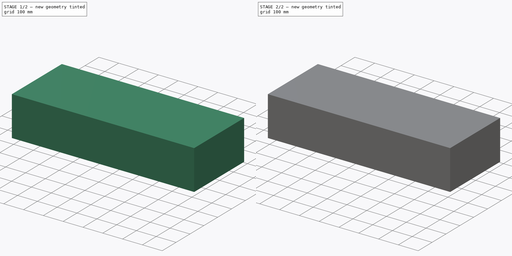
[diagram: build sequence overview — one tinted view per stage of 2, left to right]
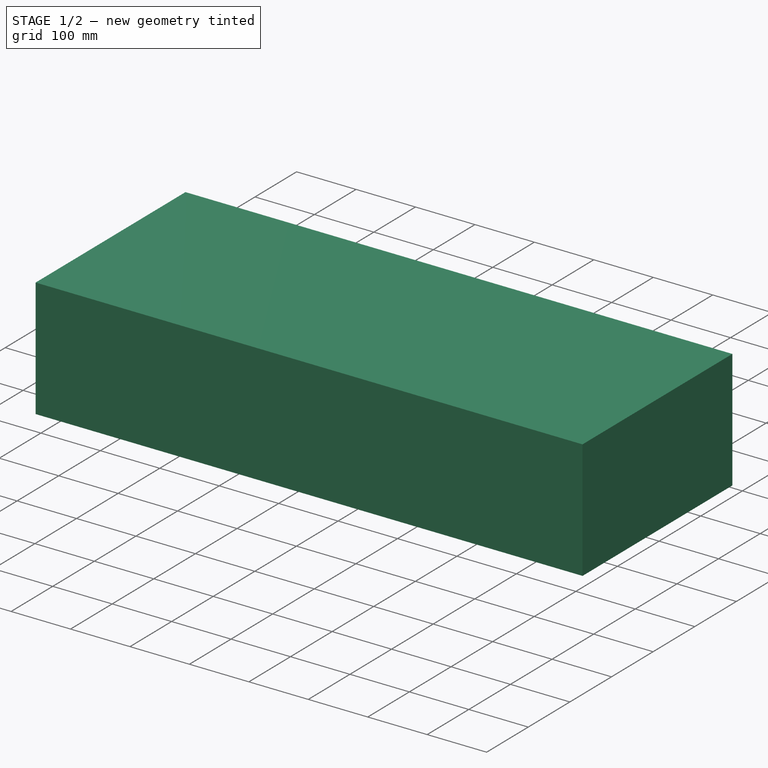
[diagram: stage 1 of 2 — iso view after this stage's code; geometry added in this stage tinted green]
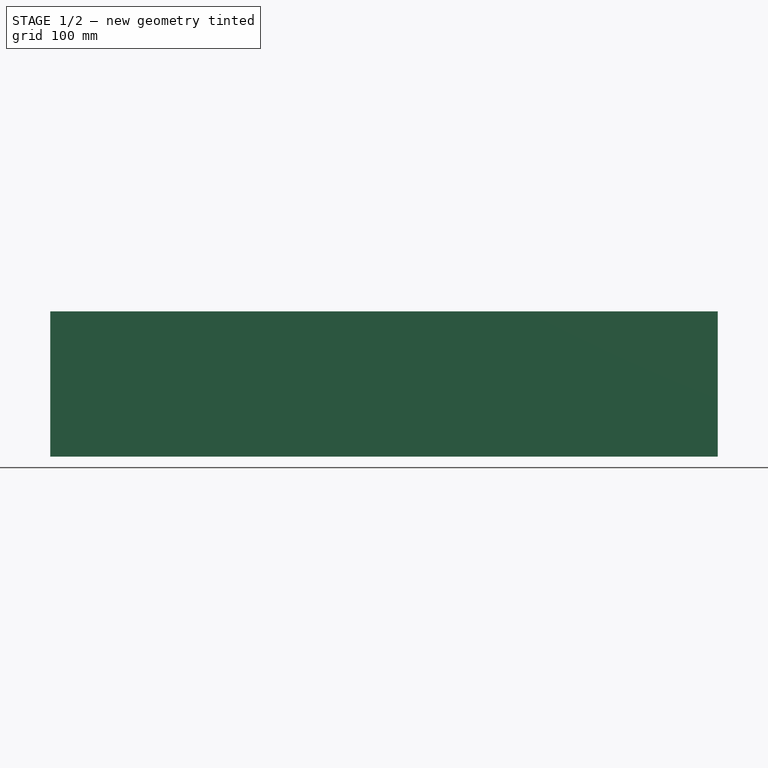
[diagram: stage 1 of 2 — front view after this stage's code; geometry added in this stage tinted green]
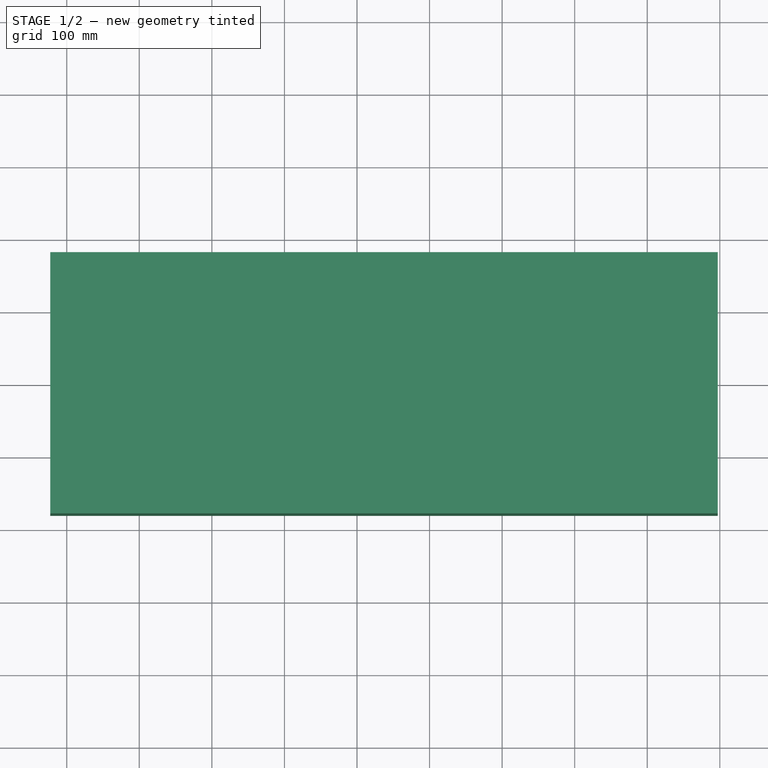
[diagram: stage 1 of 2 — top view after this stage's code; geometry added in this stage tinted green]
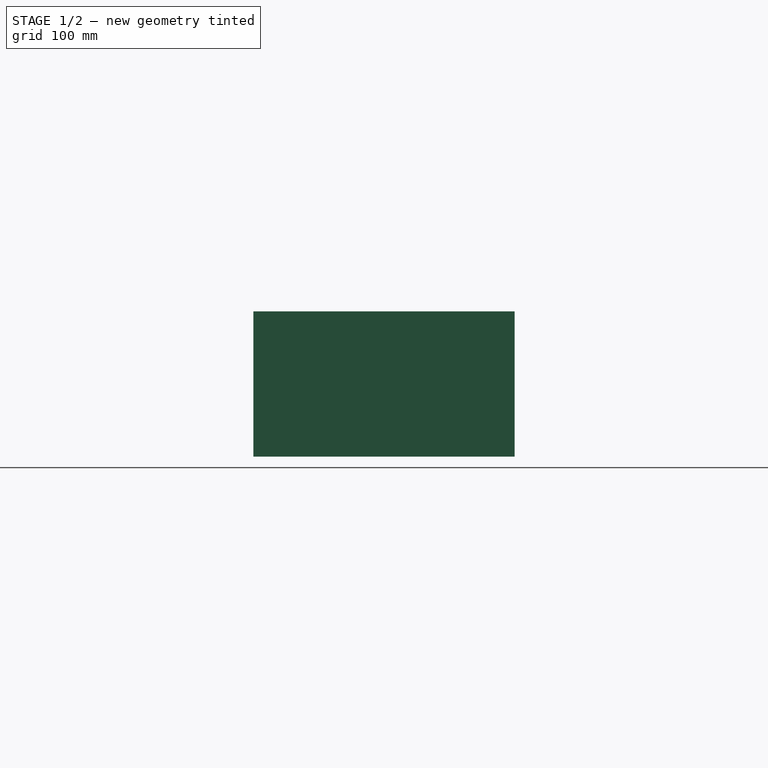
[diagram: stage 1 of 2 — right view after this stage's code; geometry added in this stage tinted green]
FCSTD DOCUMENT  (FreeCAD 0.19R24366 (Git))
Label: hulltest8
License: All rights reserved
LicenseURL: http://en.wikipedia.org/wiki/All_rights_reserved
objects: Sketcher::SketchObject×6, Part::Extrusion×4, Part::FeaturePython×2, Image::ImagePlane×1
note: 12 computed .brp shape members not serialized (recipe doc carries the construction recipe); baked Part::Feature solids carry a one-line shape summary decoded from their .brp

FEATURE [Image::ImagePlane] ImagePlane
  XSize = 937.122
  YSize = 403.932
FEATURE [Sketcher::SketchObject] Sketch  label="DeckShape"
  FullyConstrained = false
  sketch-geometry (18):
    g0-g8: Circle x9 (B-spline internal-alignment scaffolding for g9; pole/knot coordinates omitted)
    g9: BSplineCurve PolesCount=9 KnotsCount=7 Degree=3 IsPeriodic=0
    g10-g16: GeomPoint x7 (B-spline internal-alignment scaffolding for g9; pole/knot coordinates omitted)
    g17: BSplineCurve PolesCount=9 KnotsCount=7 Degree=3 IsPeriodic=0
  constraints (8):
    c: Weight(g0) = 1
    c: Equal(g0, g1-g8) x8
    c: InternalAlignment(g0-g8 -> g9) x9
    c: InternalAlignment(g10-g16 -> g9) x7
    c: PointOnObject(g9,g-1)
    c: PointOnObject(g9,g-1)
    c: Coincident(g17,g9)
    c: Coincident(g17,g9)
FEATURE [Sketcher::SketchObject] Sketch001  label="ExtrudedHullVertical"
  FullyConstrained = false
  sketch-geometry (4):
    g0: LineSegment StartX=-322.765 StartY=180 StartZ=0 EndX=597.235 EndY=180 EndZ=0
    g1: LineSegment StartX=597.235 StartY=180 StartZ=0 EndX=597.235 EndY=-180 EndZ=0
    g2: LineSegment StartX=597.235 StartY=-180 StartZ=0 EndX=-322.765 EndY=-180 EndZ=0
    g3: LineSegment StartX=-322.765 StartY=-180 StartZ=0 EndX=-322.765 EndY=180 EndZ=0
  constraints (10):
    c: Coincident(g0,g1)
    c: Coincident(g1,g2)
    c: Coincident(g2,g3)
    c: Coincident(g3,g0)
    c: Horizontal(g0)
    c: Horizontal(g2)
    c: Vertical(g1)
    c: DistanceY(g3,g3) = 360
    c: DistanceX(g0,g0) = 920
    c: Symmetric(g0,g2,g-1)
FEATURE [Sketcher::SketchObject] Sketch002
  FullyConstrained = false
  sketch-geometry (4):
    g0: LineSegment StartX=-233.043 StartY=136.5 StartZ=0 EndX=159.957 EndY=136.5 EndZ=0
    g1: LineSegment StartX=159.957 StartY=136.5 StartZ=0 EndX=159.957 EndY=-136.5 EndZ=0
    g2: LineSegment StartX=159.957 StartY=-136.5 StartZ=0 EndX=-233.043 EndY=-136.5 EndZ=0
    g3: LineSegment StartX=-233.043 StartY=-136.5 StartZ=0 EndX=-233.043 EndY=136.5 EndZ=0
  constraints (10):
    c: Coincident(g0,g1)
    c: Coincident(g1,g2)
    c: Coincident(g2,g3)
    c: Coincident(g3,g0)
    c: Horizontal(g0)
    c: Horizontal(g2)
    c: Vertical(g1)
    c: DistanceX(g0,g0) = 393
    c: DistanceY(g3,g3) = 273
    c: Symmetric(g0,g2,g-1)
FEATURE [Part::Extrusion] Extrude
  Base = -> Sketch001
  Dir = (0,0,-1)
  DirMode = 0
  FaceMakerClass = Part::FaceMakerBullseye
  LengthFwd = 200
  LengthRev = 0
  Solid = true
  Symmetric = false
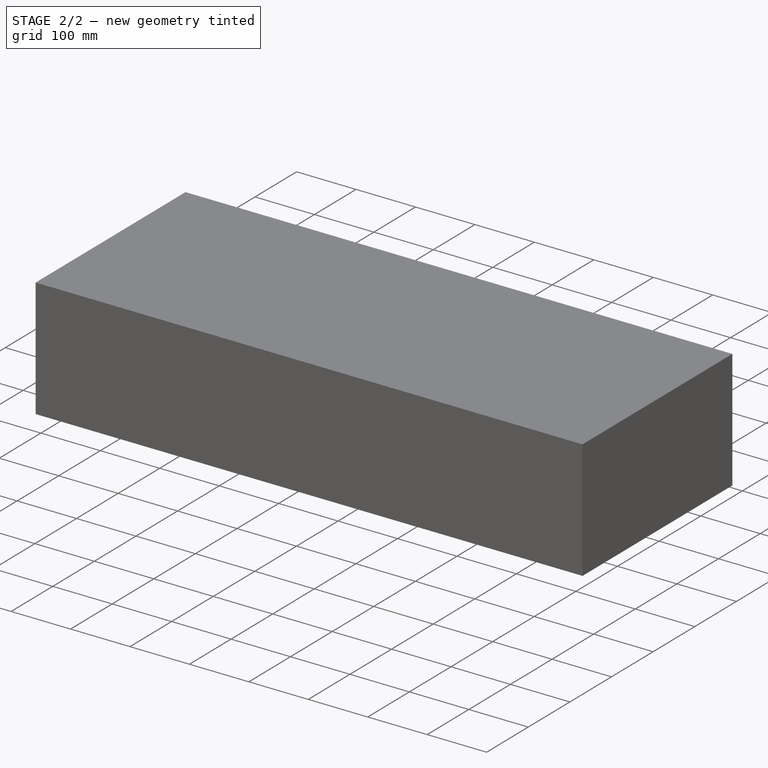
[diagram: stage 2 of 2 — iso view after this stage's code; geometry added in this stage tinted green]
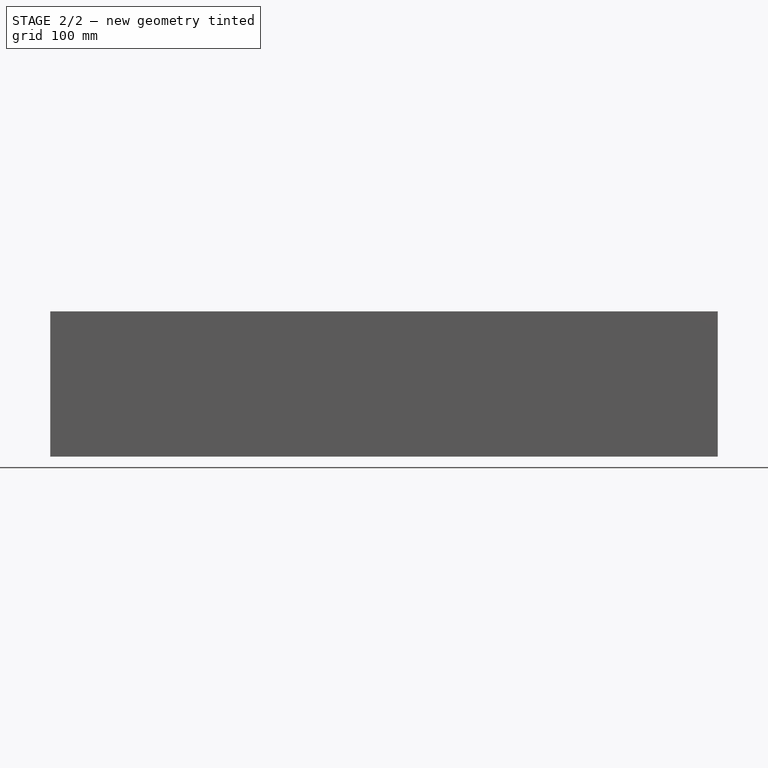
[diagram: stage 2 of 2 — front view after this stage's code; geometry added in this stage tinted green]
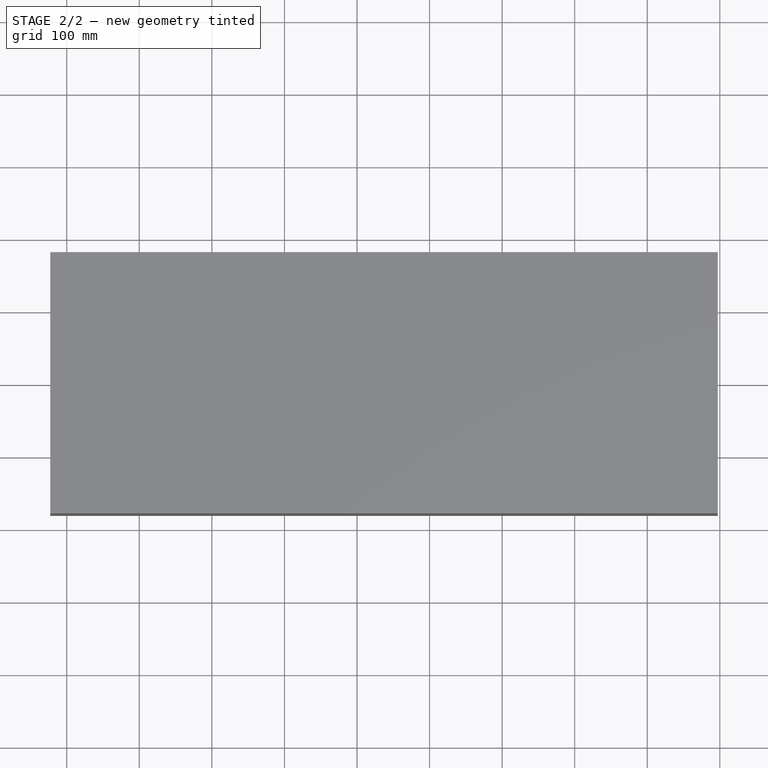
[diagram: stage 2 of 2 — top view after this stage's code; geometry added in this stage tinted green]
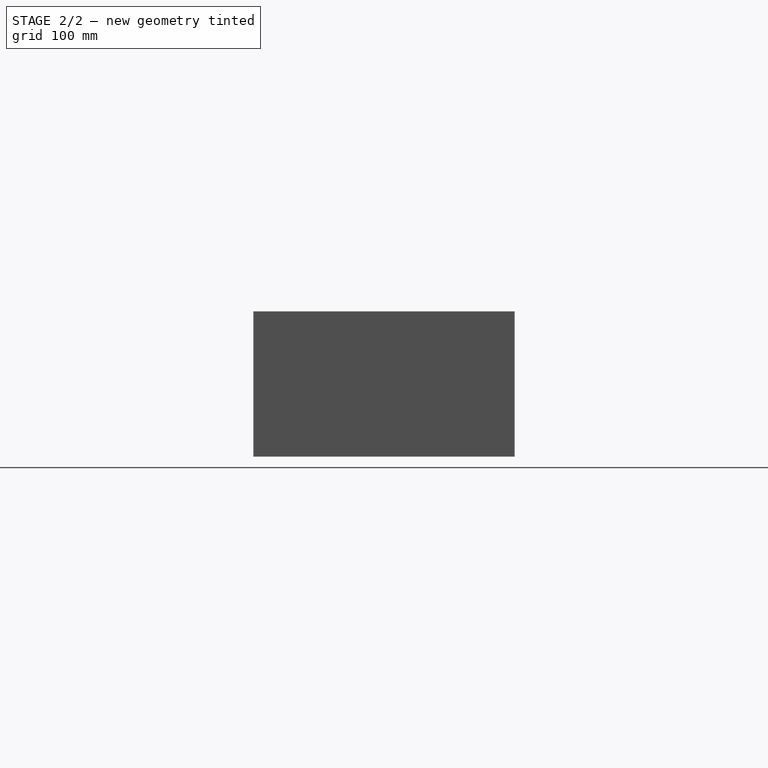
[diagram: stage 2 of 2 — right view after this stage's code; geometry added in this stage tinted green]
FEATURE [Sketcher::SketchObject] Sketch004
  FullyConstrained = false
  Placement = pos=(0,0,0) rot=(1,0,0;1.5708rad)
  sketch-geometry (4):
    g0: LineSegment StartX=-30.0981 StartY=-104.286 StartZ=0 EndX=129.902 EndY=-104.286 EndZ=0
    g1: LineSegment StartX=129.902 StartY=-104.286 StartZ=0 EndX=129.902 EndY=-168.286 EndZ=0
    g2: LineSegment StartX=129.902 StartY=-168.286 StartZ=0 EndX=-30.0981 EndY=-168.286 EndZ=0
    g3: LineSegment StartX=-30.0981 StartY=-168.286 StartZ=0 EndX=-30.0981 EndY=-104.286 EndZ=0
  constraints (10):
    c: Coincident(g0,g1)
    c: Coincident(g1,g2)
    c: Coincident(g2,g3)
    c: Coincident(g3,g0)
    c: Horizontal(g0)
    c: Horizontal(g2)
    c: Vertical(g1)
    c: Vertical(g3)
    c: DistanceX(g0,g0) = 160
    c: DistanceY(g3,g3) = 64
FEATURE [Part::Extrusion] Extrude001  label="battery"
  Base = -> Sketch004
  Dir = (0,-1,0)
  DirMode = 0
  FaceMakerClass = Part::FaceMakerBullseye
  LengthFwd = 33
  LengthRev = 0
  Solid = true
  Symmetric = false
FEATURE [Part::FeaturePython] IsoCurve  # WARN: FeaturePython — macro-defined, semantics opaque (R4)
  Face = -> Extrude [Face4]
  Mode = 1
  NumberU = 19
  NumberV = 0
  Orientation = 0
  Parameter = 0
FEATURE [Part::Extrusion] Extrude002  label="ExtrudeHullCrossectionSternBow"
  Base = -> IsoCurve
  Dir = (1,0,0)
  DirMode = 0
  FaceMakerClass = Part::FaceMakerBullseye
  LengthFwd = 920
  LengthRev = 0
  Solid = false
  Symmetric = false
FEATURE [Sketcher::SketchObject] Sketch003  label="HullShapeVertical"
  ExternalGeometry = -> [Sketch]
  FullyConstrained = false
  MapMode = 5
  Placement = pos=(0,0,0) rot=(1,0,0;1.5708rad)
  Support = -> [Extrude002]
  sketch-geometry (23):
    g0: LineSegment StartX=-307.653 StartY=-4.4e-15 StartZ=0 EndX=556.206 EndY=-1.43051e-09 EndZ=0
    g1: LineSegment StartX=-307.653 StartY=-4.4e-15 StartZ=0 EndX=-292.525 EndY=-65.9359 EndZ=0
    g2: LineSegment StartX=-276.019 StartY=-80 StartZ=0 EndX=-107.329 EndY=-91.18 EndZ=0
    g3: LineSegment StartX=-97.2983 StartY=-98.6609 StartZ=0 EndX=-72.076 EndY=-166.63 EndZ=0
    g4: LineSegment StartX=-52.8544 StartY=-180 StartZ=0 EndX=129.621 EndY=-180 EndZ=0
    g5: LineSegment StartX=141.45 StartY=-172.967 StartZ=0 EndX=181.223 EndY=-99.8143 EndZ=0
    g6: LineSegment StartX=194.826 StartY=-90.5596 StartZ=0 EndX=293.166 EndY=-78.5036 EndZ=0
    g7-g12: Circle x6 (B-spline internal-alignment scaffolding for g13; pole/knot coordinates omitted)
    g13: BSplineCurve PolesCount=6 KnotsCount=4 Degree=3 IsPeriodic=0
    g14-g17: GeomPoint x4 (B-spline internal-alignment scaffolding for g13; pole/knot coordinates omitted)
    g18: ArcOfCircle CenterX=-52.8544 CenterY=-159.498 CenterZ=0 NormalX=0 NormalY=0 NormalZ=1 AngleXU=0 Radius=20.5024 StartAngle=3.49692 EndAngle=4.71239
    g19: ArcOfCircle CenterX=129.621 CenterY=-166.536 CenterZ=0 NormalX=0 NormalY=0 NormalZ=1 AngleXU=0 Radius=13.4644 StartAngle=4.71239 EndAngle=5.7852
    g20: ArcOfCircle CenterX=197.013 CenterY=-108.399 CenterZ=0 NormalX=0 NormalY=0 NormalZ=1 AngleXU=0 Radius=17.9734 StartAngle=1.69278 EndAngle=2.6436
    g21: ArcOfCircle CenterX=-108.09 CenterY=-102.665 CenterZ=0 NormalX=0 NormalY=0 NormalZ=1 AngleXU=0 Radius=11.5106 StartAngle=0.355332 EndAngle=1.50462
    g22: ArcOfCircle CenterX=-274.818 CenterY=-61.8733 CenterZ=0 NormalX=0 NormalY=0 NormalZ=1 AngleXU=0 Radius=18.1665 StartAngle=3.36714 EndAngle=4.64621
  constraints (20):
    c: Coincident(g0,g1)
    c: Coincident(g13,g6)
    c: Weight(g7) = 1
    c: Equal(g7, g8-g12) x5
    c: Coincident(g13,g0)
    c: InternalAlignment(g7-g12 -> g13) x6
    c: InternalAlignment(g14-g17 -> g13) x4
    c: Coincident(g-3,g1)
    c: Tangent(g3,g18) = -1.5708
    c: Tangent(g4,g18) = -1.5708
    c: DistanceY(g4,g-1) = 180
    c: Tangent(g4,g19) = -1.5708
    c: Tangent(g5,g19) = -1.5708
    c: Tangent(g5,g20) = 1.5708
    c: Tangent(g6,g20) = 1.5708
    c: Tangent(g2,g21) = 1.5708
    c: Tangent(g3,g21) = 1.5708
    c: Tangent(g2,g22) = -1.5708
    c: Tangent(g1,g22) = -1.5708
    c: DistanceY(g2,g-1) = 80
FEATURE [Sketcher::SketchObject] Sketch005  label="HullShapeVerticalStarboard"
  ExternalGeometry = -> [Sketch]
  FullyConstrained = false
  MapMode = 5
  Placement = pos=(0,-20,0) rot=(1,0,0;1.5708rad)
  Support = -> [Extrude002]
  sketch-geometry (23):
    g0: LineSegment StartX=-307.653 StartY=-4.4e-15 StartZ=0 EndX=556.206 EndY=-1.43051e-09 EndZ=0
    g1: LineSegment StartX=-307.653 StartY=-4.4e-15 StartZ=0 EndX=-292.525 EndY=-65.9359 EndZ=0
    g2: LineSegment StartX=-276.019 StartY=-80 StartZ=0 EndX=-107.329 EndY=-91.18 EndZ=0
    g3: LineSegment StartX=-97.2983 StartY=-98.6609 StartZ=0 EndX=-72.076 EndY=-166.63 EndZ=0
    g4: LineSegment StartX=-52.8544 StartY=-180 StartZ=0 EndX=129.621 EndY=-180 EndZ=0
    g5: LineSegment StartX=141.45 StartY=-172.967 StartZ=0 EndX=181.223 EndY=-99.8143 EndZ=0
    g6: LineSegment StartX=194.826 StartY=-90.5596 StartZ=0 EndX=293.166 EndY=-78.5036 EndZ=0
    g7-g12: Circle x6 (B-spline internal-alignment scaffolding for g13; pole/knot coordinates omitted)
    g13: BSplineCurve PolesCount=6 KnotsCount=4 Degree=3 IsPeriodic=0
    g14-g17: GeomPoint x4 (B-spline internal-alignment scaffolding for g13; pole/knot coordinates omitted)
    g18: ArcOfCircle CenterX=-52.8544 CenterY=-159.498 CenterZ=0 NormalX=0 NormalY=0 NormalZ=1 AngleXU=0 Radius=20.5024 StartAngle=3.49692 EndAngle=4.71239
    g19: ArcOfCircle CenterX=129.621 CenterY=-166.536 CenterZ=0 NormalX=0 NormalY=0 NormalZ=1 AngleXU=0 Radius=13.4644 StartAngle=4.71239 EndAngle=5.7852
    g20: ArcOfCircle CenterX=197.013 CenterY=-108.399 CenterZ=0 NormalX=0 NormalY=0 NormalZ=1 AngleXU=0 Radius=17.9734 StartAngle=1.69278 EndAngle=2.6436
    g21: ArcOfCircle CenterX=-108.09 CenterY=-102.665 CenterZ=0 NormalX=0 NormalY=0 NormalZ=1 AngleXU=0 Radius=11.5106 StartAngle=0.355332 EndAngle=1.50462
    g22: ArcOfCircle CenterX=-274.818 CenterY=-61.8733 CenterZ=0 NormalX=0 NormalY=0 NormalZ=1 AngleXU=0 Radius=18.1665 StartAngle=3.36714 EndAngle=4.64621
  constraints (20):
    c: Coincident(g0,g1)
    c: Coincident(g13,g6)
    c: Weight(g7) = 1
    c: Equal(g7, g8-g12) x5
    c: Coincident(g13,g0)
    c: InternalAlignment(g7-g12 -> g13) x6
    c: InternalAlignment(g14-g17 -> g13) x4
    c: Coincident(g-3,g1)
    c: Tangent(g3,g18) = -1.5708
    c: Tangent(g4,g18) = -1.5708
    c: DistanceY(g4,g-1) = 180
    c: Tangent(g4,g19) = -1.5708
    c: Tangent(g5,g19) = -1.5708
    c: Tangent(g5,g20) = 1.5708
    c: Tangent(g6,g20) = 1.5708
    c: Tangent(g2,g21) = 1.5708
    c: Tangent(g3,g21) = 1.5708
    c: Tangent(g2,g22) = -1.5708
    c: Tangent(g1,g22) = -1.5708
    c: DistanceY(g2,g-1) = 80
FEATURE [Part::FeaturePython] IsoCurve001  # WARN: FeaturePython — macro-defined, semantics opaque (R4)
  Face = -> Extrude [Face3]
  Mode = 1
  NumberU = 80
  NumberV = 0
  Orientation = 0
  Parameter = 0
FEATURE [Part::Extrusion] Extrude003
  Base = -> IsoCurve001
  Dir = (0,1,0)
  DirMode = 0
  FaceMakerClass = Part::FaceMakerBullseye
  LengthFwd = 360
  LengthRev = 0
  Solid = false
  Symmetric = false
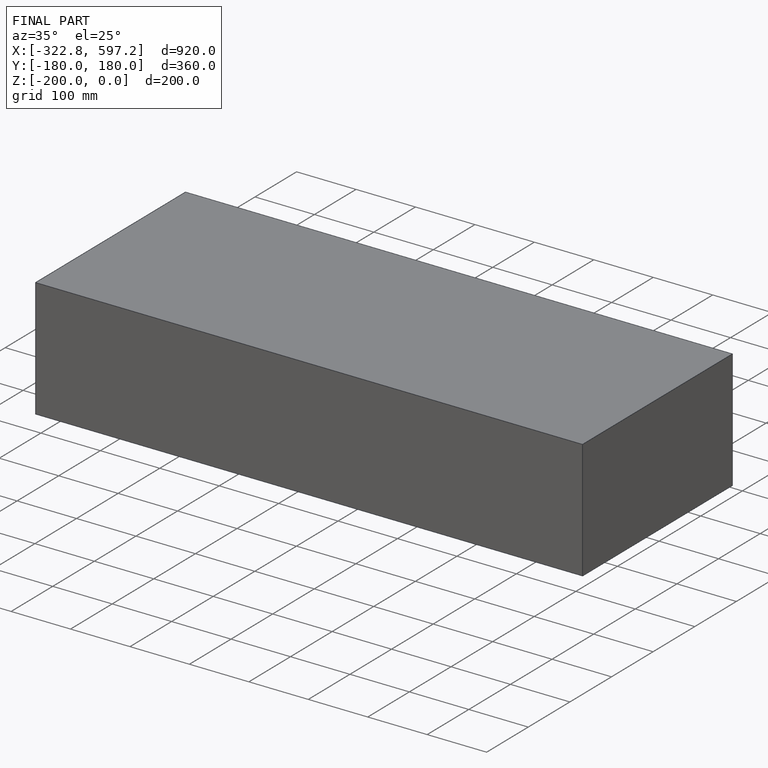
[diagram: finished part — iso view with bounding-box wireframe]
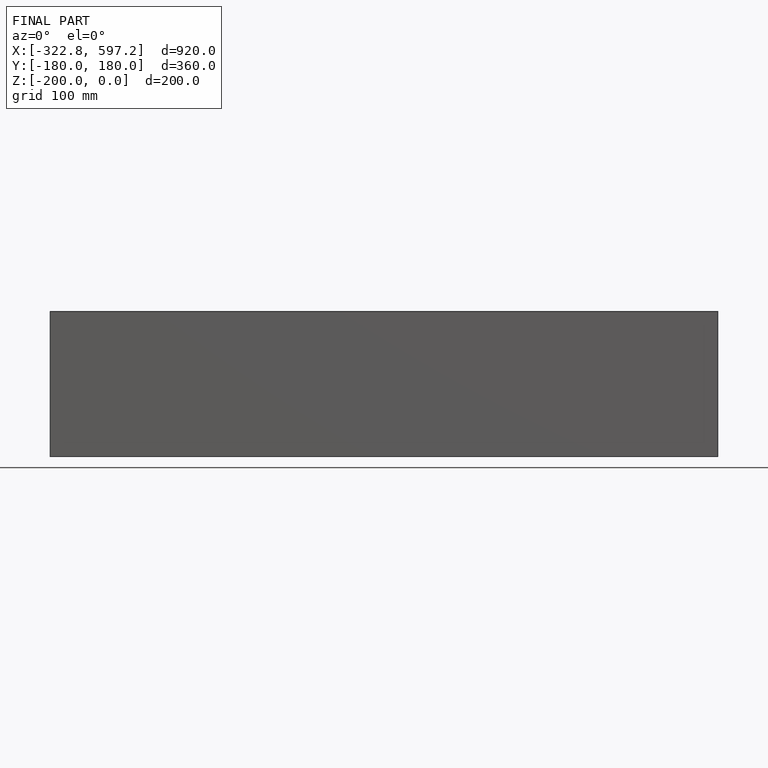
[diagram: finished part — front view with bounding-box wireframe]
